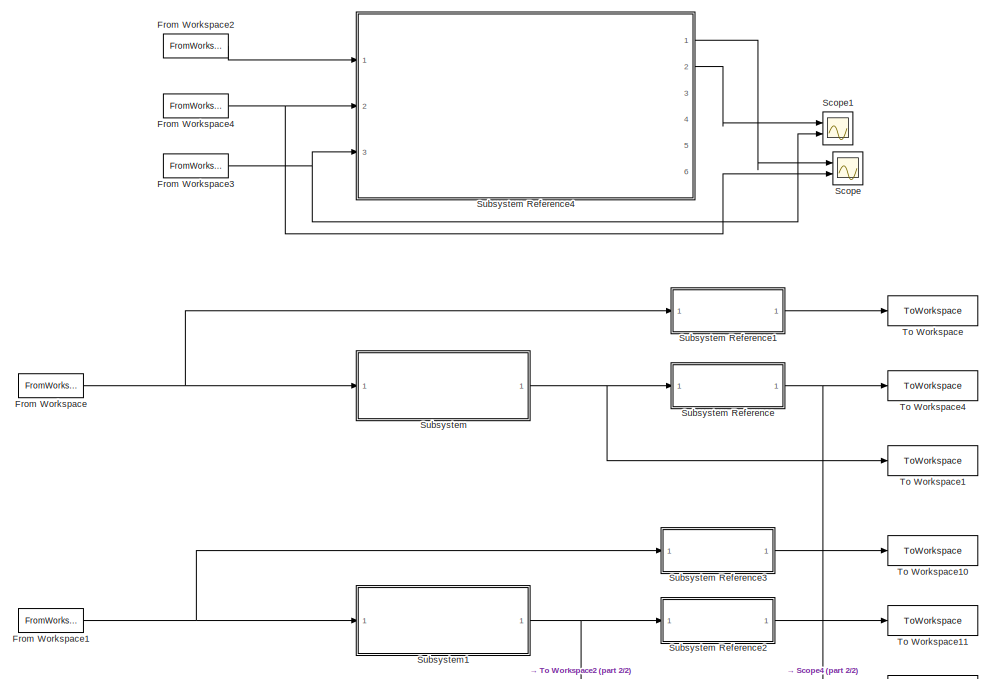
[diagram: root canvas - part 1/2, top center region]
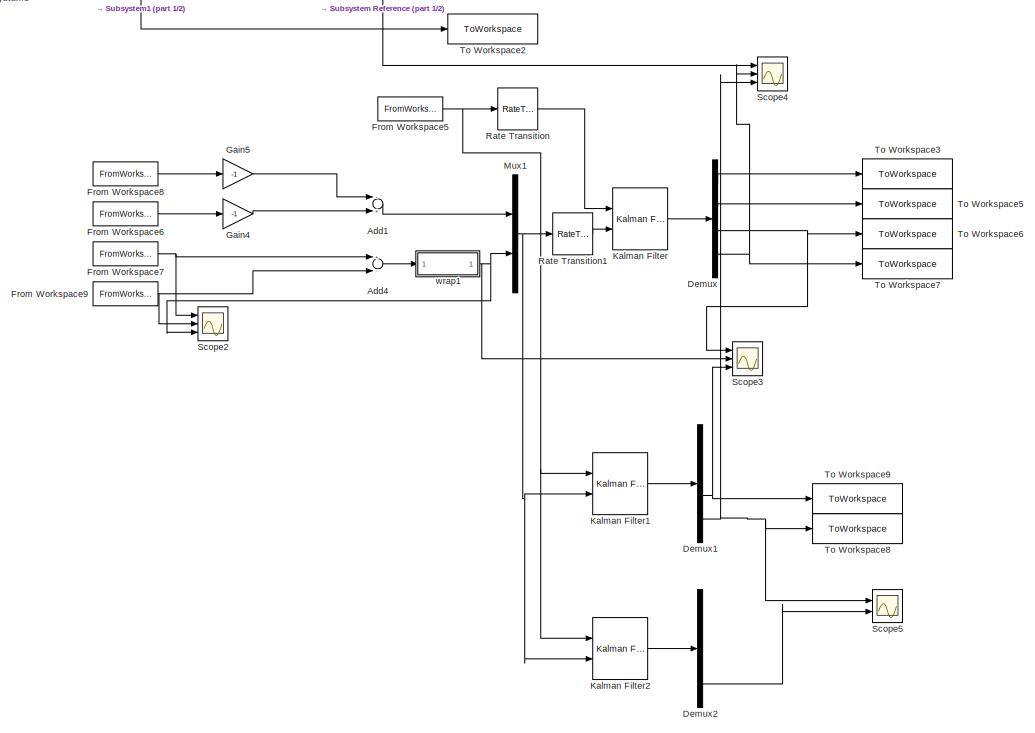
[diagram: root canvas - part 2/2, bottom center region]
MODEL slx_dad33a491612
KIND model
CONFIG AbsTol = auto
CONFIG EnableMultiTasking = off
CONFIG FixedStep = dt_control
CONFIG MaxStep = auto
CONFIG MinStep = auto
CONFIG RelTol = 1e-3
CONFIG SampleTimeConstraint = Unconstrained
CONFIG Solver = ode1
CONFIG SolverName = ode1
CONFIG StartTime = 0.0
CONFIG StopTime = T_sim
BLOCK [Sum] Add1
  InputSameDT = off
  Inputs = -+
  OutDataTypeStr = Inherit: Inherit via internal rule
  Ports = [2, 1]
  SaturateOnIntegerOverflow = off
BLOCK [Sum] Add4
  InputSameDT = off
  Inputs = +-
  OutDataTypeStr = Inherit: Inherit via internal rule
  Ports = [2, 1]
  SaturateOnIntegerOverflow = off
BLOCK [Demux] Demux
  DisplayOption = bar
  Ports = [1, 4]
BLOCK [Demux] Demux1
  DisplayOption = bar
  Ports = [1, 4]
BLOCK [Demux] Demux2
  DisplayOption = bar
  Ports = [1, 4]
BLOCK [FromWorkspace] From Workspace
  SampleTime = 0
  VariableName = simin.alpha
  ZeroCross = on
BLOCK [FromWorkspace] From Workspace1
  SampleTime = 0
  VariableName = simin.theta
  ZeroCross = on
BLOCK [FromWorkspace] From Workspace2
  Commented = on
  SampleTime = 0
  VariableName = simin.voltage
  ZeroCross = on
BLOCK [FromWorkspace] From Workspace3
  Commented = on
  SampleTime = 0
  VariableName = simin.alpha
  ZeroCross = on
BLOCK [FromWorkspace] From Workspace4
  Commented = on
  SampleTime = 0
  VariableName = simin.theta
  ZeroCross = on
BLOCK [FromWorkspace] From Workspace5
  SampleTime = 0
  VariableName = simin.voltage
  ZeroCross = on
BLOCK [FromWorkspace] From Workspace6
  SampleTime = 0
  VariableName = simin.theta
  ZeroCross = on
BLOCK [FromWorkspace] From Workspace7
  SampleTime = 0
  VariableName = simin.alpha
  ZeroCross = on
BLOCK [FromWorkspace] From Workspace8
  SampleTime = 0
  VariableName = simin.theta_ref
  ZeroCross = on
BLOCK [FromWorkspace] From Workspace9
  SampleTime = 0
  VariableName = simin.alpha_ref
  ZeroCross = on
BLOCK [Gain] Gain4
  Gain = -1
  OutDataTypeStr = Inherit: Inherit via internal rule
  ParamDataTypeStr = Inherit: Inherit via internal rule
  SaturateOnIntegerOverflow = off
BLOCK [Gain] Gain5
  Gain = -1
  OutDataTypeStr = Inherit: Inherit via internal rule
  ParamDataTypeStr = Inherit: Inherit via internal rule
  SaturateOnIntegerOverflow = off
BLOCK [Reference] Kalman Filter  REF=ctrlSharedLib/Kalman Filter
  Ports = [2, 1]
  SourceBlock = ctrlSharedLib/Kalman Filter
  SourceProductBaseCode = CT
  SourceProductName = Control System Toolbox
  SourceType = ctrlKalmanFilter
BLOCK [Reference] Kalman Filter1  REF=ctrlSharedLib/Kalman Filter
  Ports = [2, 1]
  SourceBlock = ctrlSharedLib/Kalman Filter
  SourceProductBaseCode = CT
  SourceProductName = Control System Toolbox
  SourceType = ctrlKalmanFilter
BLOCK [Reference] Kalman Filter2  REF=ctrlSharedLib/Kalman Filter
  Ports = [2, 1]
  SourceBlock = ctrlSharedLib/Kalman Filter
  SourceProductBaseCode = CT
  SourceProductName = Control System Toolbox
  SourceType = ctrlKalmanFilter
BLOCK [Mux] Mux1
  DisplayOption = bar
  Inputs = 2
  Ports = [2, 1]
BLOCK [RateTransition] Rate Transition
  OutPortSampleTime = dt_control
BLOCK [RateTransition] Rate Transition1
  OutPortSampleTime = dt_control
BLOCK [Scope] Scope
  Commented = on
  Floating = off
  NumInputPorts = 2
  Ports = [2]
  ScopeSpecificationString = Simulink.scopes.TimeScopeBlockCfg('CurrentConfiguration', extmgr.ConfigurationSet(extmgr.Configuration('Core','General UI',true),extmgr.Configuration('Core','Source UI',true),extmgr.Configuration('Sources','WiredSimulink',true),extmgr.Configuration('Visuals','Time Domain',true,'SerializedDisplays',{struct('MinYLimReal','-2.94524','MaxYLimReal','2.94524','YLabelReal','','MinYLimMag','0.00000','MaxY...<+1428ch>
BLOCK [Scope] Scope1
  Commented = on
  Floating = off
  NumInputPorts = 2
  Ports = [2]
  ScopeSpecificationString = Simulink.scopes.TimeScopeBlockCfg('CurrentConfiguration', extmgr.ConfigurationSet(extmgr.Configuration('Core','General UI',true),extmgr.Configuration('Core','Source UI',true),extmgr.Configuration('Sources','WiredSimulink',true,'DataLoggingVariableName','ScopeData1'),extmgr.Configuration('Visuals','Time Domain',true,'SerializedDisplays',{struct('MinYLimReal','-20.6488','MaxYLimReal','17.3541','YLab...<+1467ch>
BLOCK [Scope] Scope2
  Floating = off
  NumInputPorts = 3
  Ports = [3]
  ScopeSpecificationString = Simulink.scopes.TimeScopeBlockCfg('CurrentConfiguration', extmgr.ConfigurationSet(extmgr.Configuration('Core','General UI',true),extmgr.Configuration('Core','Source UI',true),extmgr.Configuration('Sources','WiredSimulink',true,'DataLoggingVariableName','ScopeData2'),extmgr.Configuration('Visuals','Time Domain',true,'SerializedDisplays',{struct('MinYLimReal','-3.95167','MaxYLimReal','4.1491','YLabe...<+1445ch>
BLOCK [Scope] Scope3
  Floating = off
  NumInputPorts = 3
  Ports = [3]
  ScopeSpecificationString = Simulink.scopes.TimeScopeBlockCfg('CurrentConfiguration', extmgr.ConfigurationSet(extmgr.Configuration('Core','General UI',true),extmgr.Configuration('Core','Source UI',true),extmgr.Configuration('Sources','WiredSimulink',true,'DataLoggingVariableName','ScopeData3'),extmgr.Configuration('Visuals','Time Domain',true,'SerializedDisplays',{struct('MinYLimReal','-0.13887','MaxYLimReal','0.11921','YLab...<+1481ch>
BLOCK [Scope] Scope4
  Floating = off
  NumInputPorts = 3
  Ports = [3]
  ScopeSpecificationString = Simulink.scopes.TimeScopeBlockCfg('CurrentConfiguration', extmgr.ConfigurationSet(extmgr.Configuration('Core','General UI',true),extmgr.Configuration('Core','Source UI',true),extmgr.Configuration('Sources','WiredSimulink',true,'DataLoggingVariableName','ScopeData4'),extmgr.Configuration('Visuals','Time Domain',true,'SerializedDisplays',{struct('MinYLimReal','-1.51803','MaxYLimReal','1.46586','YLab...<+1495ch>
BLOCK [Scope] Scope5
  Floating = off
  NumInputPorts = 2
  Ports = [2]
  ScopeSpecificationString = Simulink.scopes.TimeScopeBlockCfg('CurrentConfiguration', extmgr.ConfigurationSet(extmgr.Configuration('Core','General UI',true),extmgr.Configuration('Core','Source UI',true),extmgr.Configuration('Sources','WiredSimulink',true,'DataLoggingVariableName','ScopeData5'),extmgr.Configuration('Visuals','Time Domain',true,'SerializedDisplays',{struct('MinYLimReal','-10.00000','MaxYLimReal','10.00000','YL...<+1455ch>
BLOCK [SubSystem] Subsystem
  Ports = [1, 1]
  ReferencedSubsystem = Polynomial_Filter
  RequestExecContextInheritance = off
BLOCK [SubSystem] Subsystem Reference
  BlockKeywords = __PRM__SERIALIZED__DATA__:SubsystemReferenceBlock
  Ports = [1, 1]
  ReferencedSubsystem = Filtered_Derivative
  RequestExecContextInheritance = off
  den = den_der_filter
  num = num_der_filter
BLOCK [SubSystem] Subsystem Reference1
  BlockKeywords = __PRM__SERIALIZED__DATA__:SubsystemReferenceBlock
  Ports = [1, 1]
  ReferencedSubsystem = Filtered_Derivative
  RequestExecContextInheritance = off
  den = den_der_filter
  num = num_der_filter
BLOCK [SubSystem] Subsystem Reference2
  BlockKeywords = __PRM__SERIALIZED__DATA__:SubsystemReferenceBlock
  Ports = [1, 1]
  ReferencedSubsystem = Filtered_Derivative
  RequestExecContextInheritance = off
  den = den_der_filter
  num = num_der_filter
BLOCK [SubSystem] Subsystem Reference3
  BlockKeywords = __PRM__SERIALIZED__DATA__:SubsystemReferenceBlock
  Ports = [1, 1]
  ReferencedSubsystem = Filtered_Derivative
  RequestExecContextInheritance = off
  den = den_der_filter
  num = num_der_filter
BLOCK [SubSystem] Subsystem Reference4
  BlockKeywords = __PRM__SERIALIZED__DATA__:SubsystemReferenceBlock
  Commented = on
  Ports = [3, 6]
  ReferencedSubsystem = s0606_SIL_observer
  RequestExecContextInheritance = off
  al_0 = PARAMS.al_0
  al_dot_0 = PARAMS.al_dot_0
  th_0 = PARAMS.th_0
  th_dot_0 = PARAMS.th_dot_0
BLOCK [SubSystem] Subsystem1
  Ports = [1, 1]
  ReferencedSubsystem = Polynomial_Filter
  RequestExecContextInheritance = off
BLOCK [ToWorkspace] To Workspace
  FixptAsFi = on
  MaxDataPoints = inf
  Ports = [1]
  SampleTime = -1
  SaveFormat = Timeseries
  VariableName = der_alpha
BLOCK [ToWorkspace] To Workspace1
  FixptAsFi = on
  MaxDataPoints = inf
  Ports = [1]
  SampleTime = -1
  SaveFormat = Timeseries
  VariableName = poly_alpha
BLOCK [ToWorkspace] To Workspace10
  FixptAsFi = on
  MaxDataPoints = inf
  Ports = [1]
  SampleTime = -1
  SaveFormat = Timeseries
  VariableName = der_theta
BLOCK [ToWorkspace] To Workspace11
  FixptAsFi = on
  MaxDataPoints = inf
  Ports = [1]
  SampleTime = -1
  SaveFormat = Timeseries
  VariableName = poly_der_theta
BLOCK [ToWorkspace] To Workspace2
  FixptAsFi = on
  MaxDataPoints = inf
  Ports = [1]
  SampleTime = -1
  SaveFormat = Timeseries
  VariableName = poly_theta
BLOCK [ToWorkspace] To Workspace3
  FixptAsFi = on
  MaxDataPoints = inf
  Ports = [1]
  SampleTime = -1
  SaveFormat = Timeseries
  VariableName = KF_theta
BLOCK [ToWorkspace] To Workspace4
  FixptAsFi = on
  MaxDataPoints = inf
  Ports = [1]
  SampleTime = -1
  SaveFormat = Timeseries
  VariableName = poly_der_alpha
BLOCK [ToWorkspace] To Workspace5
  FixptAsFi = on
  MaxDataPoints = inf
  Ports = [1]
  SampleTime = -1
  SaveFormat = Timeseries
  VariableName = KF_theta_dot
BLOCK [ToWorkspace] To Workspace6
  FixptAsFi = on
  MaxDataPoints = inf
  Ports = [1]
  SampleTime = -1
  SaveFormat = Timeseries
  VariableName = KF_alpha
BLOCK [ToWorkspace] To Workspace7
  FixptAsFi = on
  MaxDataPoints = inf
  Ports = [1]
  SampleTime = -1
  SaveFormat = Timeseries
  VariableName = KF_alpha_dot
BLOCK [ToWorkspace] To Workspace8
  FixptAsFi = on
  MaxDataPoints = inf
  Ports = [1]
  SampleTime = -1
  SaveFormat = Timeseries
  VariableName = KFct_alpha_dot
BLOCK [ToWorkspace] To Workspace9
  FixptAsFi = on
  MaxDataPoints = inf
  Ports = [1]
  SampleTime = -1
  SaveFormat = Timeseries
  VariableName = KFct_alpha
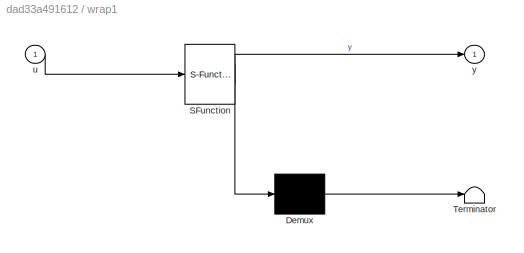
BLOCK [SubSystem] wrap1
  ErrorFcn = Stateflow.Translate.translate
  PermitHierarchicalResolution = ExplicitOnly
  Ports = [1, 1]
  RequestExecContextInheritance = off
  SFBlockType = MATLAB Function
  TreatAsAtomicUnit = on
BLOCK [Demux] wrap1/ Demux 
  Outputs = 1
  Ports = [1, 1]
BLOCK [S-Function] wrap1/ SFunction 
  EnableBusSupport = on
  FunctionName = sf_sfun
  PortCounts = [1 2]
  Ports = [1, 2]
  SFcnIsStateOwnerBlock = off
  SFunctionDeploymentMode = off
  Tag = Stateflow S-Function 7
BLOCK [Terminator] wrap1/ Terminator 
BLOCK [Inport] wrap1/u
  IconDisplay = Port number
BLOCK [Outport] wrap1/y
  IconDisplay = Port number
LINE Add1:1 -> Mux1:1
LINE Add4:1 -> wrap1:1
NET Demux1:3 -> Scope3:3, To Workspace9:1
NET Demux1:4 -> Scope4:3, Scope5:1, To Workspace8:1
LINE Demux2:4 -> Scope5:2
LINE Demux:1 -> To Workspace3:1
LINE Demux:2 -> To Workspace5:1
NET Demux:3 -> Scope3:1, To Workspace6:1
NET Demux:4 -> Scope4:2, To Workspace7:1
NET From Workspace1:1 -> Subsystem Reference3:1, Subsystem1:1
LINE From Workspace2:1 -> Subsystem Reference4:1
NET From Workspace3:1 -> Scope1:2, Subsystem Reference4:3
NET From Workspace4:1 -> Scope:2, Subsystem Reference4:2
NET From Workspace5:1 -> Kalman Filter1:1, Kalman Filter2:1, Rate Transition:1
LINE From Workspace6:1 -> Gain4:1
NET From Workspace7:1 -> Add4:1, Scope2:1
LINE From Workspace8:1 -> Gain5:1
NET From Workspace9:1 -> Add4:2, Scope2:2
NET From Workspace:1 -> Subsystem Reference1:1, Subsystem:1
LINE Gain4:1 -> Add1:2
LINE Gain5:1 -> Add1:1
LINE Kalman Filter1:1 -> Demux1:1
LINE Kalman Filter2:1 -> Demux2:1
LINE Kalman Filter:1 -> Demux:1
NET Mux1:1 -> Kalman Filter1:2, Kalman Filter2:2, Rate Transition1:1
LINE Rate Transition1:1 -> Kalman Filter:2
LINE Rate Transition:1 -> Kalman Filter:1
LINE Subsystem Reference1:1 -> To Workspace:1
LINE Subsystem Reference2:1 -> To Workspace11:1
LINE Subsystem Reference3:1 -> To Workspace10:1
LINE Subsystem Reference4:1 -> Scope:1
LINE Subsystem Reference4:2 -> Scope1:1
NET Subsystem Reference:1 -> Scope4:1, To Workspace4:1
NET Subsystem1:1 -> Subsystem Reference2:1, To Workspace2:1
NET Subsystem:1 -> Subsystem Reference:1, To Workspace1:1
NET wrap1:1 -> Mux1:2, Scope2:3, Scope3:2
note: NET lines group one-source signal fan-out (src -> all destinations, sorted); 1:1 wires keep LINE
CHART wrap1 states=1 transitions=1
  STATE_LABEL 'eML_blk_kernel()'
  STATE_LABEL 'SCRIPT:\nfunction y = wrap(u)\nstop_condition = false;\ny = u;\nwhile ~stop_condition\n    if y > pi\n        y = y - 2*pi;\n    elseif y < -pi\n        y = y + 2*pi;\n    else\n        stop_condition = true;\n    end\nend\n    \n'
